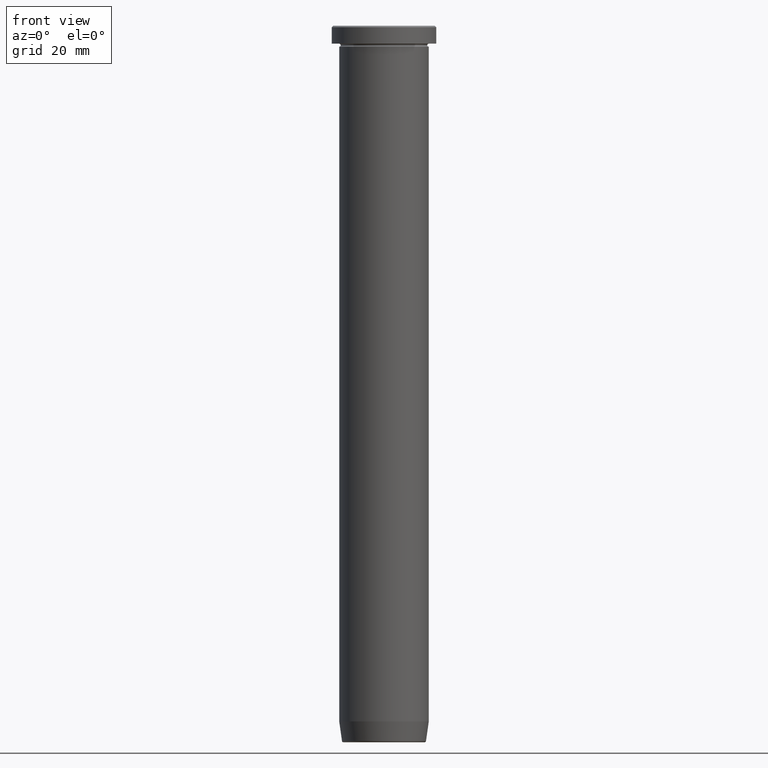
[diagram: clean part render]
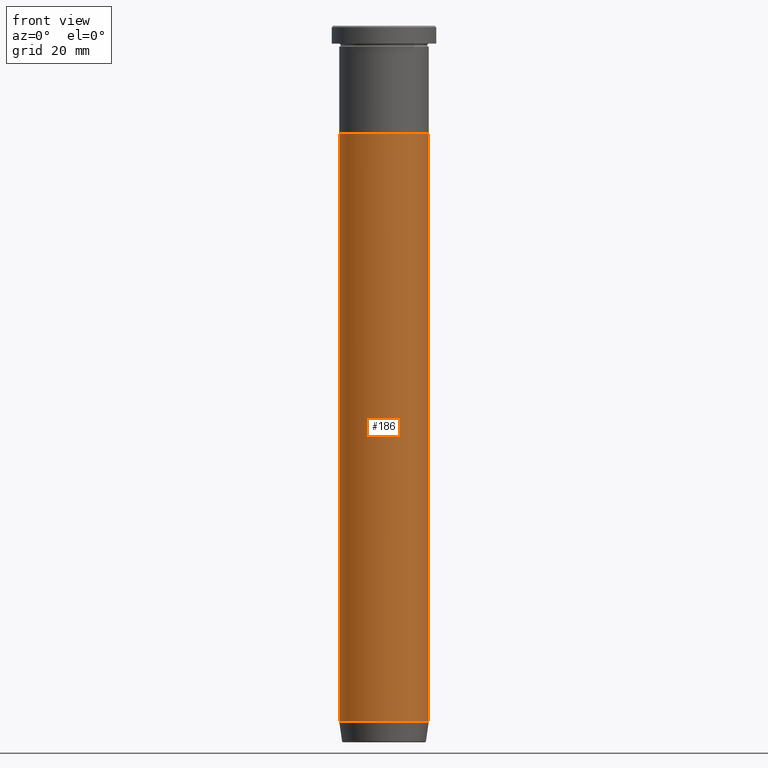
[diagram: same view with one face highlighted and labeled with its STEP entity id]
A machine part, front view. The second image highlights one B-rep face of the part: STEP entity #186.
In plain terms, the highlighted cylindrical surface (partial cylindrical patch) has radius 15 mm, axis along (-0, -0, 1).
Its self-contained STEP definition (entity closure, byte-faithful):
#10 = DIRECTION ( 'NONE',  ( -0.000000000000000000, -0.000000000000000000, 1.000000000000000000 ) ) ;
#14 = CARTESIAN_POINT ( 'NONE',  ( 0.000000000000000000, 0.000000000000000000, -232.9999999999999716 ) ) ;
#15 = VECTOR ( 'NONE', #355, 1000.000000000000000 ) ;
#29 = DIRECTION ( 'NONE',  ( -0.000000000000000000, -0.000000000000000000, 1.000000000000000000 ) ) ;
#41 = VERTEX_POINT ( 'NONE', #567 ) ;
#48 = EDGE_CURVE ( 'NONE', #41, #58, #295, .T. ) ;
#58 = VERTEX_POINT ( 'NONE', #332 ) ;
#73 = CARTESIAN_POINT ( 'NONE',  ( 0.000000000000000000, 0.000000000000000000, 0.000000000000000000 ) ) ;
#93 = ORIENTED_EDGE ( 'NONE', *, *, #552, .T. ) ;
#95 = DIRECTION ( 'NONE',  ( -0.000000000000000000, -0.000000000000000000, 1.000000000000000000 ) ) ;
#102 = AXIS2_PLACEMENT_3D ( 'NONE', #73, #29, #305 ) ;
#109 = DIRECTION ( 'NONE',  ( -0.000000000000000000, -0.000000000000000000, 1.000000000000000000 ) ) ;
#110 = EDGE_CURVE ( 'NONE', #523, #168, #358, .T. ) ;
#113 = AXIS2_PLACEMENT_3D ( 'NONE', #14, #10, #155 ) ;
#114 = ORIENTED_EDGE ( 'NONE', *, *, #110, .T. ) ;
#132 = ORIENTED_EDGE ( 'NONE', *, *, #48, .F. ) ;
#151 = AXIS2_PLACEMENT_3D ( 'NONE', #336, #109, #285 ) ;
#155 = DIRECTION ( 'NONE',  ( 1.000000000000000000, 0.000000000000000000, 0.000000000000000000 ) ) ;
#168 = VERTEX_POINT ( 'NONE', #397 ) ;
#171 = CARTESIAN_POINT ( 'NONE',  ( -15.00000000000000000, 1.836970198721029589E-15, 0.000000000000000000 ) ) ;
#186 = ADVANCED_FACE ( 'NONE', ( #313 ), #395, .T. ) ;
#285 = DIRECTION ( 'NONE',  ( 1.000000000000000000, 0.000000000000000000, 0.000000000000000000 ) ) ;
#294 = EDGE_CURVE ( 'NONE', #523, #41, #578, .T. ) ;
#295 = CIRCLE ( 'NONE', #151, 15.00000000000000000 ) ;
#305 = DIRECTION ( 'NONE',  ( 1.000000000000000000, 0.000000000000000000, 0.000000000000000000 ) ) ;
#313 = FACE_OUTER_BOUND ( 'NONE', #342, .T. ) ;
#332 = CARTESIAN_POINT ( 'NONE',  ( 15.00000000000000000, 0.000000000000000000, -36.00000000000000000 ) ) ;
#335 = CARTESIAN_POINT ( 'NONE',  ( 15.00000000000000000, 0.000000000000000000, 0.000000000000000000 ) ) ;
#336 = CARTESIAN_POINT ( 'NONE',  ( 0.000000000000000000, 0.000000000000000000, -36.00000000000000000 ) ) ;
#342 = EDGE_LOOP ( 'NONE', ( #448, #114, #93, #132 ) ) ;
#355 = DIRECTION ( 'NONE',  ( -0.000000000000000000, -0.000000000000000000, 1.000000000000000000 ) ) ;
#358 = CIRCLE ( 'NONE', #113, 15.00000000000000000 ) ;
#395 = CYLINDRICAL_SURFACE ( 'NONE', #102, 15.00000000000000000 ) ;
#397 = CARTESIAN_POINT ( 'NONE',  ( 15.00000000000000000, 0.000000000000000000, -232.9999999999999716 ) ) ;
#448 = ORIENTED_EDGE ( 'NONE', *, *, #294, .F. ) ;
#489 = VECTOR ( 'NONE', #95, 1000.000000000000000 ) ;
#511 = LINE ( 'NONE', #335, #489 ) ;
#523 = VERTEX_POINT ( 'NONE', #563 ) ;
#552 = EDGE_CURVE ( 'NONE', #168, #58, #511, .T. ) ;
#563 = CARTESIAN_POINT ( 'NONE',  ( -15.00000000000000000, 1.836970198721029589E-15, -232.9999999999999716 ) ) ;
#567 = CARTESIAN_POINT ( 'NONE',  ( -15.00000000000000000, 1.836970198721029589E-15, -36.00000000000000000 ) ) ;
#578 = LINE ( 'NONE', #171, #15 ) ;